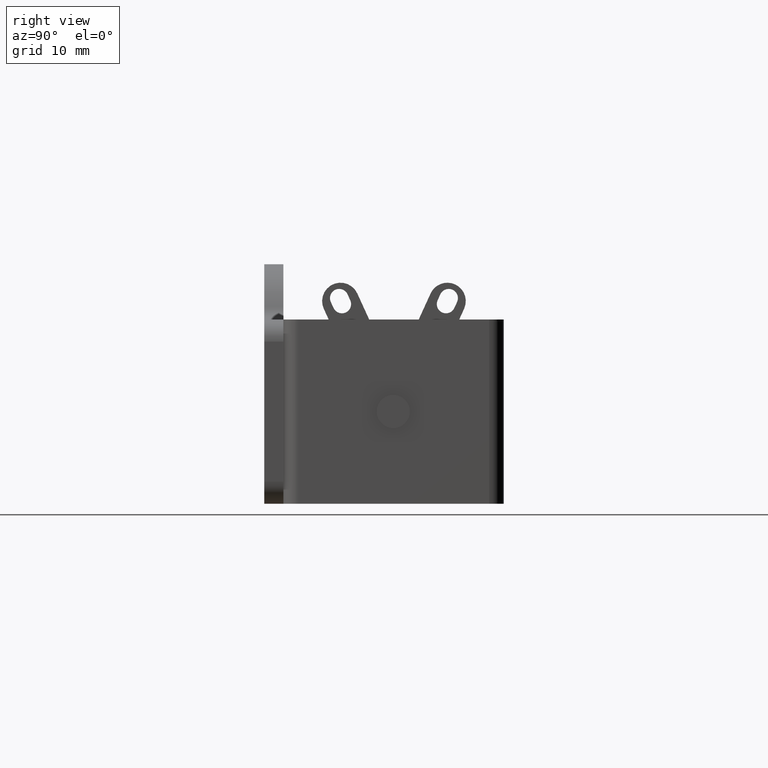
[diagram: clean part render]
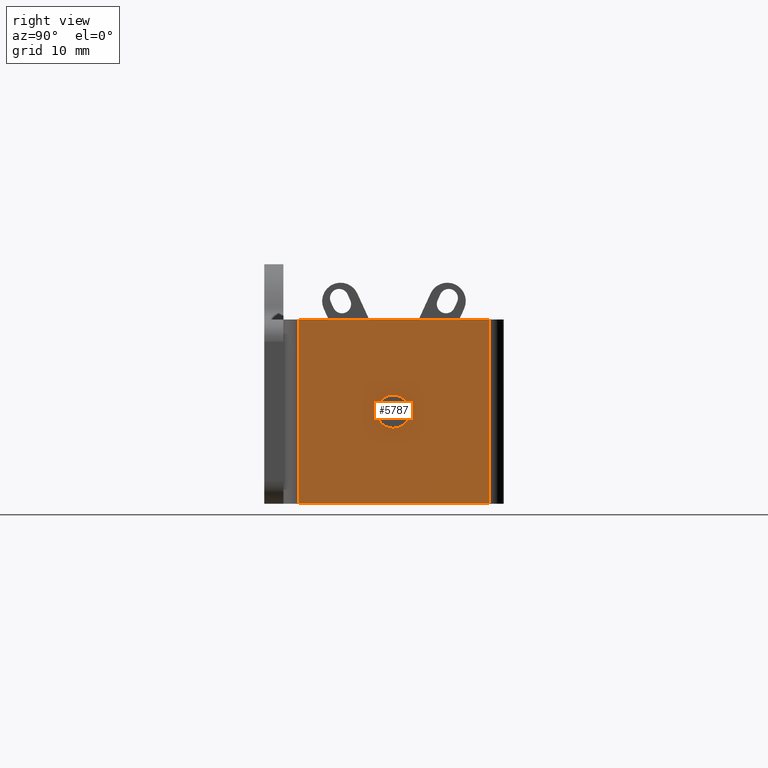
[diagram: same view with one face highlighted and labeled with its STEP entity id]
A machine part, right view. The second image highlights one B-rep face of the part: STEP entity #5787.
In plain terms, the highlighted face is a freeform B-spline surface patch.
Its self-contained STEP definition (entity closure, byte-faithful):
#3790=CARTESIAN_POINT('',(59.0,15.254196703566890,-11.137359214215079));
#3791=VERTEX_POINT('',#3790);
#3797=CARTESIAN_POINT('',(59.0,17.500000000000000,-13.249999999999920));
#3798=VERTEX_POINT('',#3797);
#3799=CARTESIAN_POINT('',(59.0,17.500000000000000,-13.249999999999920));
#3800=CARTESIAN_POINT('',(59.0,15.383411349956400,-13.249999999999917));
#3801=CARTESIAN_POINT('',(59.0,15.254196703566889,-11.137359214215085));
#3809=(BOUNDED_CURVE()B_SPLINE_CURVE(2,(#3799,#3800,#3801),.UNSPECIFIED.,.F.,.U.)B_SPLINE_CURVE_WITH_KNOTS((3,3),(0.500000000000000,0.739332962201761),.UNSPECIFIED.)CURVE()GEOMETRIC_REPRESENTATION_ITEM()RATIONAL_B_SPLINE_CURVE((1.0,0.719603993330271,0.976072041587031))REPRESENTATION_ITEM(''));
#3810=EDGE_CURVE('',#3798,#3791,#3809,.T.);
#3812=CARTESIAN_POINT('',(59.0,19.734271434303299,-10.734422971897191));
#3813=VERTEX_POINT('',#3812);
#3814=CARTESIAN_POINT('',(59.0,19.734271434303292,-10.734422971897196));
#3815=CARTESIAN_POINT('',(59.000000000000007,19.749999999999918,-10.866745730656776));
#3816=CARTESIAN_POINT('',(59.0,19.749999999999918,-11.0));
#3817=CARTESIAN_POINT('',(58.999999999999993,19.749999999999922,-13.249999999999915));
#3818=CARTESIAN_POINT('',(59.0,17.500000000000000,-13.249999999999920));
#3826=(BOUNDED_CURVE()B_SPLINE_CURVE(2,(#3814,#3815,#3816,#3817,#3818),.UNSPECIFIED.,.F.,.U.)B_SPLINE_CURVE_WITH_KNOTS((3,2,3),(0.229562473496717,0.250000000000000,0.500000000000000),.UNSPECIFIED.)CURVE()GEOMETRIC_REPRESENTATION_ITEM()RATIONAL_B_SPLINE_CURVE((0.956026754150788,0.976055948311473,1.0,0.707106781186548,1.0))REPRESENTATION_ITEM(''));
#3827=EDGE_CURVE('',#3813,#3798,#3826,.T.);
#3871=CARTESIAN_POINT('',(59.0,17.500000000000000,-8.750000000000084));
#3872=VERTEX_POINT('',#3871);
#3873=CARTESIAN_POINT('',(59.0,17.500000000000000,-8.750000000000084));
#3874=CARTESIAN_POINT('',(58.999999999999993,19.498392683165118,-8.750000000000084));
#3875=CARTESIAN_POINT('',(59.000000000000007,19.734271434303299,-10.734422971897194));
#3883=(BOUNDED_CURVE()B_SPLINE_CURVE(2,(#3873,#3874,#3875),.UNSPECIFIED.,.F.,.U.)B_SPLINE_CURVE_WITH_KNOTS((3,3),(0.0,0.229562473496717),.UNSPECIFIED.)CURVE()GEOMETRIC_REPRESENTATION_ITEM()RATIONAL_B_SPLINE_CURVE((1.0,0.731050832875075,0.956026754150788))REPRESENTATION_ITEM(''));
#3884=EDGE_CURVE('',#3872,#3813,#3883,.T.);
#3886=CARTESIAN_POINT('',(59.0,15.254196703566889,-11.137359214215085));
#3887=CARTESIAN_POINT('',(59.000000000000007,15.250000000000083,-11.068743717684214));
#3888=CARTESIAN_POINT('',(59.0,15.250000000000091,-11.0));
#3889=CARTESIAN_POINT('',(58.999999999999993,15.250000000000085,-8.750000000000084));
#3890=CARTESIAN_POINT('',(59.0,17.500000000000000,-8.750000000000084));
#3898=(BOUNDED_CURVE()B_SPLINE_CURVE(2,(#3886,#3887,#3888,#3889,#3890),.UNSPECIFIED.,.F.,.U.)B_SPLINE_CURVE_WITH_KNOTS((3,2,3),(0.739332962201761,0.750000000000000,1.0),.UNSPECIFIED.)CURVE()GEOMETRIC_REPRESENTATION_ITEM()RATIONAL_B_SPLINE_CURVE((0.976072041587031,0.987502787856277,1.0,0.707106781186548,1.0))REPRESENTATION_ITEM(''));
#3899=EDGE_CURVE('',#3791,#3872,#3898,.T.);
#5439=CARTESIAN_POINT('',(59.0,4.600000000000110,1.499999999999946));
#5440=VERTEX_POINT('',#5439);
#5454=CARTESIAN_POINT('',(59.0,30.500000000000000,1.499999999999946));
#5455=VERTEX_POINT('',#5454);
#5456=CARTESIAN_POINT('',(59.0,4.600000000000110,1.499999999999946));
#5457=CARTESIAN_POINT('',(59.0,30.500000000000000,1.499999999999946));
#5458=QUASI_UNIFORM_CURVE('',1,(#5456,#5457),.UNSPECIFIED.,.F.,.U.);
#5459=EDGE_CURVE('',#5440,#5455,#5458,.T.);
#5544=CARTESIAN_POINT('',(59.0,30.500000000000000,-23.500000000000000));
#5545=VERTEX_POINT('',#5544);
#5559=CARTESIAN_POINT('',(59.0,4.600000000000110,-23.500000000000000));
#5560=VERTEX_POINT('',#5559);
#5561=CARTESIAN_POINT('',(59.0,4.600000000000110,-23.500000000000000));
#5562=CARTESIAN_POINT('',(59.0,30.500000000000000,-23.500000000000000));
#5563=QUASI_UNIFORM_CURVE('',1,(#5561,#5562),.UNSPECIFIED.,.F.,.U.);
#5564=EDGE_CURVE('',#5560,#5545,#5563,.T.);
#5603=CARTESIAN_POINT('',(59.0,4.600000000000110,-23.500000000000000));
#5604=CARTESIAN_POINT('',(59.0,4.600000000000110,1.499999999999946));
#5605=QUASI_UNIFORM_CURVE('',1,(#5603,#5604),.UNSPECIFIED.,.F.,.U.);
#5606=EDGE_CURVE('',#5560,#5440,#5605,.T.);
#5742=CARTESIAN_POINT('',(59.0,30.500000000000000,-23.500000000000000));
#5743=CARTESIAN_POINT('',(59.0,30.500000000000000,1.499999999999946));
#5744=QUASI_UNIFORM_CURVE('',1,(#5742,#5743),.UNSPECIFIED.,.F.,.U.);
#5745=EDGE_CURVE('',#5545,#5455,#5744,.T.);
#5770=CARTESIAN_POINT('',(59.0,3.306294807068673,-24.748749951545150));
#5771=CARTESIAN_POINT('',(59.0,31.793705656059540,-24.748749951545150));
#5772=CARTESIAN_POINT('',(59.0,3.306294807068673,2.748750622097347));
#5773=CARTESIAN_POINT('',(59.0,31.793705656059540,2.748750622097347));
#5774=B_SPLINE_SURFACE_WITH_KNOTS('',1,1,((#5770,#5772),(#5771,#5773)),.UNSPECIFIED.,.F.,.F.,.U.,(2,2),(2,2),(0.0,28.487410848990859),(0.0,27.497500573642501),.UNSPECIFIED.);
#5775=ORIENTED_EDGE('',*,*,#5459,.F.);
#5776=ORIENTED_EDGE('',*,*,#5606,.F.);
#5777=ORIENTED_EDGE('',*,*,#5564,.T.);
#5778=ORIENTED_EDGE('',*,*,#5745,.T.);
#5779=EDGE_LOOP('',(#5775,#5776,#5777,#5778));
#5780=FACE_OUTER_BOUND('',#5779,.T.);
#5781=ORIENTED_EDGE('',*,*,#3810,.T.);
#5782=ORIENTED_EDGE('',*,*,#3899,.T.);
#5783=ORIENTED_EDGE('',*,*,#3884,.T.);
#5784=ORIENTED_EDGE('',*,*,#3827,.T.);
#5785=EDGE_LOOP('',(#5781,#5782,#5783,#5784));
#5786=FACE_BOUND('',#5785,.T.);
#5787=ADVANCED_FACE('',(#5780,#5786),#5774,.T.);